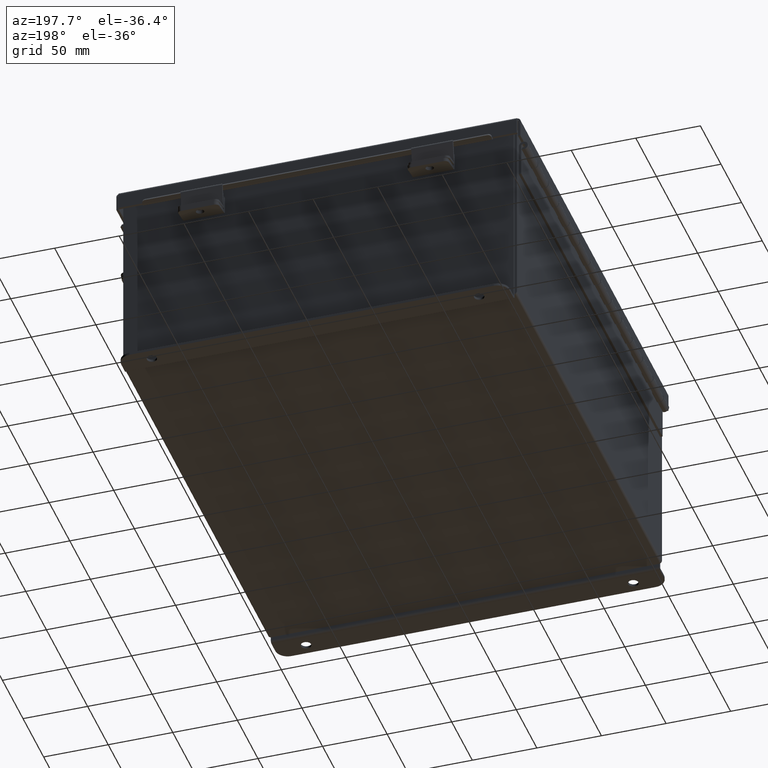
[diagram: clean part render]
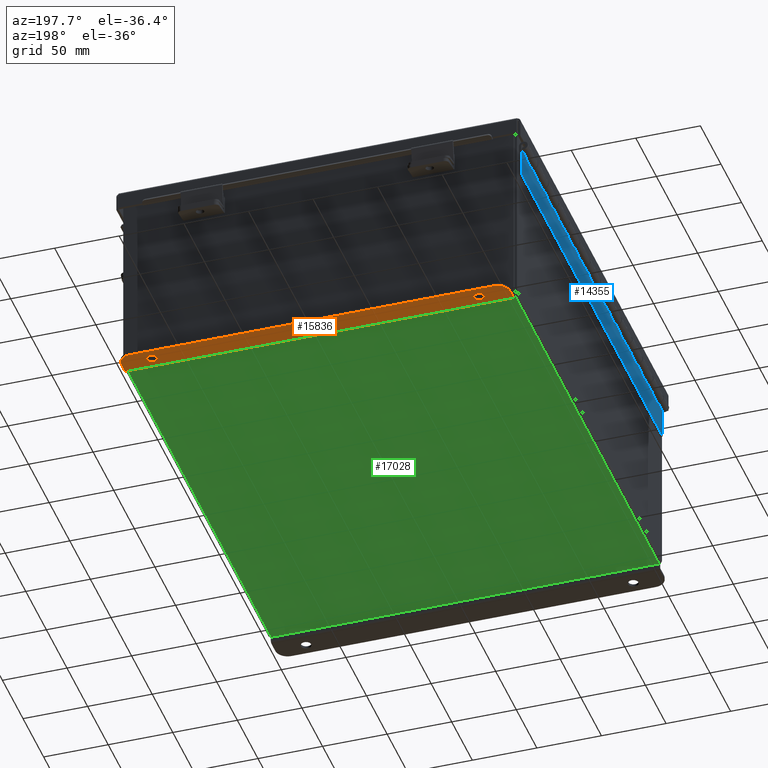
[diagram: same view with three faces highlighted in distinct colors, each labeled with its STEP entity id]
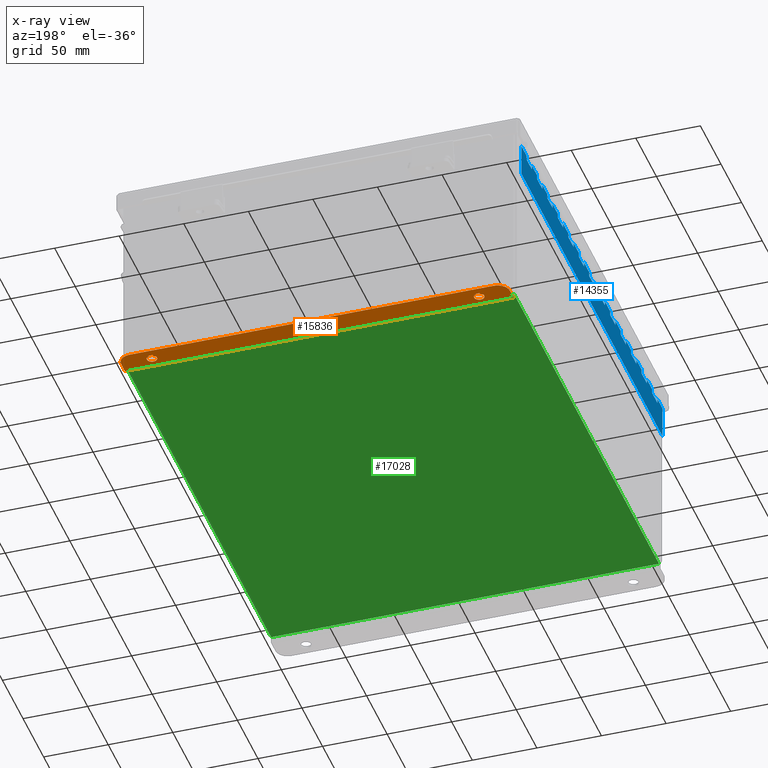
[diagram: x-ray of the same camera — body ghosted, the three highlighted faces saturated]
A machine part, auxiliary view with three faces highlighted in distinct colors.
The next image is the same camera in x-ray (body ghosted, the three faces saturated) — at least one of them is partly hidden behind the body in this view.
Their STEP definitions:

[orange] entity #15836 — the highlighted planar face has unit normal (0, 0, 1).
#337 = DIRECTION ( 'NONE',  ( 0.0000000000000000000, 1.000000000000000000, -3.502369222646487000E-015 ) ) ;
#587 = VERTEX_POINT ( 'NONE', #2865 ) ;
#720 = CARTESIAN_POINT ( 'NONE',  ( 0.0000000000000000000, -1.109230584341476100E-014, -3.187000000000000300 ) ) ;
#759 = CARTESIAN_POINT ( 'NONE',  ( -5.550299999999999100, 0.3628000000000000100, -3.187000000000001200 ) ) ;
#1600 = DIRECTION ( 'NONE',  ( 0.0000000000000000000, -3.702694488566362300E-015, -1.000000000000000000 ) ) ;
#1658 = EDGE_CURVE ( 'NONE', #587, #14502, #17418, .T. ) ;
#1887 = CARTESIAN_POINT ( 'NONE',  ( 5.925299999999999100, 0.3627999999999999600, -3.187000000000001200 ) ) ;
#2094 = VECTOR ( 'NONE', #6525, 39.37007874015748100 ) ;
#2193 = DIRECTION ( 'NONE',  ( 0.0000000000000000000, 1.000000000000000000, -3.702694488566362300E-015 ) ) ;
#2212 = DIRECTION ( 'NONE',  ( 0.0000000000000000000, -1.000000000000000000, 4.370956789862820400E-015 ) ) ;
#2614 = EDGE_CURVE ( 'NONE', #17371, #3729, #2806, .T. ) ;
#2806 = LINE ( 'NONE', #5163, #10878 ) ;
#2828 = CARTESIAN_POINT ( 'NONE',  ( -5.925300000000001800, 0.3628000000000000100, -3.187000000000001200 ) ) ;
#2838 = AXIS2_PLACEMENT_3D ( 'NONE', #16396, #7822, #17837 ) ;
#2865 = CARTESIAN_POINT ( 'NONE',  ( 4.987799999999998200, 0.2067999999999997300, -3.187000000000000700 ) ) ;
#2995 = CIRCLE ( 'NONE', #10208, 0.1560000000000001900 ) ;
#3059 = CARTESIAN_POINT ( 'NONE',  ( 5.550299999999999100, 0.7378000000000000100, -3.187000000000002900 ) ) ;
#3074 = VERTEX_POINT ( 'NONE', #8721 ) ;
#3231 = CIRCLE ( 'NONE', #13300, 0.1560000000000001900 ) ;
#3314 = ORIENTED_EDGE ( 'NONE', *, *, #16847, .F. ) ;
#3405 = EDGE_CURVE ( 'NONE', #16385, #3074, #17385, .T. ) ;
#3729 = VERTEX_POINT ( 'NONE', #3059 ) ;
#3970 = EDGE_CURVE ( 'NONE', #9628, #17371, #12644, .T. ) ;
#5010 = PLANE ( 'NONE',  #17401 ) ;
#5070 = DIRECTION ( 'NONE',  ( 0.0000000000000000000, 3.702694488566362300E-015, 1.000000000000000000 ) ) ;
#5163 = CARTESIAN_POINT ( 'NONE',  ( 0.0000000000000000000, 0.7378000000000000100, -3.187000000000002900 ) ) ;
#5236 = CIRCLE ( 'NONE', #7540, 0.1560000000000001900 ) ;
#5241 = FACE_OUTER_BOUND ( 'NONE', #15194, .T. ) ;
#5640 = VERTEX_POINT ( 'NONE', #17110 ) ;
#6077 = CARTESIAN_POINT ( 'NONE',  ( 5.925299999999999100, 0.01300000000000062700, -3.187000000000000300 ) ) ;
#6109 = AXIS2_PLACEMENT_3D ( 'NONE', #759, #10799, #2212 ) ;
#6260 = ORIENTED_EDGE ( 'NONE', *, *, #14530, .F. ) ;
#6525 = DIRECTION ( 'NONE',  ( 0.0000000000000000000, -1.000000000000000000, 3.702694488566362300E-015 ) ) ;
#6550 = EDGE_CURVE ( 'NONE', #5640, #9628, #8128, .T. ) ;
#6685 = DIRECTION ( 'NONE',  ( 0.0000000000000000000, -3.702694488566362300E-015, -1.000000000000000000 ) ) ;
#6763 = ORIENTED_EDGE ( 'NONE', *, *, #3970, .T. ) ;
#6944 = EDGE_CURVE ( 'NONE', #14502, #587, #2995, .T. ) ;
#7540 = AXIS2_PLACEMENT_3D ( 'NONE', #7865, #17899, #9284 ) ;
#7822 = DIRECTION ( 'NONE',  ( -0.0000000000000000000, -3.702694488566362300E-015, -1.000000000000000000 ) ) ;
#7865 = CARTESIAN_POINT ( 'NONE',  ( -4.987800000000000900, 0.3627999999999999000, -3.187000000000001200 ) ) ;
#8128 = LINE ( 'NONE', #9348, #15760 ) ;
#8277 = VERTEX_POINT ( 'NONE', #9502 ) ;
#8293 = EDGE_LOOP ( 'NONE', ( #17692, #9153 ) ) ;
#8721 = CARTESIAN_POINT ( 'NONE',  ( 5.925299999999999100, 0.01299999999999968500, -3.187000000000000300 ) ) ;
#8948 = DIRECTION ( 'NONE',  ( 0.0000000000000000000, -3.702694488566362300E-015, -1.000000000000000000 ) ) ;
#9006 = LINE ( 'NONE', #6077, #16196 ) ;
#9040 = FACE_BOUND ( 'NONE', #8293, .T. ) ;
#9153 = ORIENTED_EDGE ( 'NONE', *, *, #1658, .F. ) ;
#9284 = DIRECTION ( 'NONE',  ( 0.0000000000000000000, 1.000000000000000000, -3.502369222646487000E-015 ) ) ;
#9348 = CARTESIAN_POINT ( 'NONE',  ( -5.925300000000001800, -1.109230584341476100E-014, -3.187000000000000300 ) ) ;
#9502 = CARTESIAN_POINT ( 'NONE',  ( -4.987800000000000900, 0.2067999999999997300, -3.187000000000000700 ) ) ;
#9628 = VERTEX_POINT ( 'NONE', #2828 ) ;
#9725 = CIRCLE ( 'NONE', #2838, 0.3750000000000000600 ) ;
#9954 = ORIENTED_EDGE ( 'NONE', *, *, #6550, .T. ) ;
#10208 = AXIS2_PLACEMENT_3D ( 'NONE', #10216, #1600, #11659 ) ;
#10216 = CARTESIAN_POINT ( 'NONE',  ( 4.987799999999998200, 0.3627999999999999000, -3.187000000000001200 ) ) ;
#10305 = EDGE_LOOP ( 'NONE', ( #11667, #6260 ) ) ;
#10770 = CARTESIAN_POINT ( 'NONE',  ( 5.925299999999999100, -1.109230584341476100E-014, -3.187000000000000300 ) ) ;
#10787 = DIRECTION ( 'NONE',  ( 1.000000000000000000, 0.0000000000000000000, -0.0000000000000000000 ) ) ;
#10799 = DIRECTION ( 'NONE',  ( -0.0000000000000000000, -3.702694488566362300E-015, -1.000000000000000000 ) ) ;
#10878 = VECTOR ( 'NONE', #10787, 39.37007874015748100 ) ;
#11157 = EDGE_CURVE ( 'NONE', #3729, #16385, #9725, .T. ) ;
#11659 = DIRECTION ( 'NONE',  ( 0.0000000000000000000, 1.000000000000000000, -3.502369222646487000E-015 ) ) ;
#11667 = ORIENTED_EDGE ( 'NONE', *, *, #15073, .F. ) ;
#11799 = VERTEX_POINT ( 'NONE', #14571 ) ;
#11871 = ORIENTED_EDGE ( 'NONE', *, *, #3405, .T. ) ;
#12644 = CIRCLE ( 'NONE', #6109, 0.3750000000000000600 ) ;
#13300 = AXIS2_PLACEMENT_3D ( 'NONE', #15265, #6685, #16708 ) ;
#14323 = AXIS2_PLACEMENT_3D ( 'NONE', #17544, #8948, #337 ) ;
#14502 = VERTEX_POINT ( 'NONE', #15208 ) ;
#14530 = EDGE_CURVE ( 'NONE', #8277, #11799, #3231, .T. ) ;
#14571 = CARTESIAN_POINT ( 'NONE',  ( -4.987800000000000900, 0.5188000000000000400, -3.187000000000001600 ) ) ;
#14596 = ORIENTED_EDGE ( 'NONE', *, *, #11157, .T. ) ;
#14624 = DIRECTION ( 'NONE',  ( 1.000000000000000000, -0.0000000000000000000, -0.0000000000000000000 ) ) ;
#15073 = EDGE_CURVE ( 'NONE', #11799, #8277, #5236, .T. ) ;
#15085 = DIRECTION ( 'NONE',  ( 0.0000000000000000000, -1.000000000000000000, 3.702694488566362300E-015 ) ) ;
#15194 = EDGE_LOOP ( 'NONE', ( #15609, #14596, #11871, #3314, #9954, #6763 ) ) ;
#15208 = CARTESIAN_POINT ( 'NONE',  ( 4.987799999999998200, 0.5188000000000000400, -3.187000000000001600 ) ) ;
#15265 = CARTESIAN_POINT ( 'NONE',  ( -4.987800000000000900, 0.3627999999999999000, -3.187000000000001200 ) ) ;
#15609 = ORIENTED_EDGE ( 'NONE', *, *, #2614, .T. ) ;
#15760 = VECTOR ( 'NONE', #2193, 39.37007874015748100 ) ;
#15836 = ADVANCED_FACE ( 'NONE', ( #16419, #9040, #5241 ), #5010, .F. ) ;
#16196 = VECTOR ( 'NONE', #14624, 39.37007874015748100 ) ;
#16385 = VERTEX_POINT ( 'NONE', #1887 ) ;
#16396 = CARTESIAN_POINT ( 'NONE',  ( 5.550299999999999100, 0.3627999999999999600, -3.187000000000001200 ) ) ;
#16419 = FACE_BOUND ( 'NONE', #10305, .T. ) ;
#16708 = DIRECTION ( 'NONE',  ( 0.0000000000000000000, 1.000000000000000000, -3.502369222646487000E-015 ) ) ;
#16847 = EDGE_CURVE ( 'NONE', #5640, #3074, #9006, .T. ) ;
#17110 = CARTESIAN_POINT ( 'NONE',  ( -5.925300000000000000, 0.01300000000000062700, -3.187000000000000300 ) ) ;
#17128 = CARTESIAN_POINT ( 'NONE',  ( -5.550299999999999100, 0.7378000000000000100, -3.187000000000002900 ) ) ;
#17371 = VERTEX_POINT ( 'NONE', #17128 ) ;
#17385 = LINE ( 'NONE', #10770, #2094 ) ;
#17401 = AXIS2_PLACEMENT_3D ( 'NONE', #720, #5070, #15085 ) ;
#17418 = CIRCLE ( 'NONE', #14323, 0.1560000000000001900 ) ;
#17544 = CARTESIAN_POINT ( 'NONE',  ( 4.987799999999998200, 0.3627999999999999000, -3.187000000000001200 ) ) ;
#17692 = ORIENTED_EDGE ( 'NONE', *, *, #6944, .F. ) ;
#17837 = DIRECTION ( 'NONE',  ( 0.0000000000000000000, -1.000000000000000000, 4.370956789862820400E-015 ) ) ;
#17899 = DIRECTION ( 'NONE',  ( 0.0000000000000000000, -3.702694488566362300E-015, -1.000000000000000000 ) ) ;

[blue] entity #14355 — the highlighted planar face has unit normal (1, -0, 0).
#85 = VECTOR ( 'NONE', #2034, 39.37007874015748100 ) ;
#106 = LINE ( 'NONE', #14425, #11569 ) ;
#151 = VECTOR ( 'NONE', #12463, 39.37007874015748100 ) ;
#159 = DIRECTION ( 'NONE',  ( -1.000000000000000000, 8.005415366049124900E-015, 0.0000000000000000000 ) ) ;
#187 = EDGE_CURVE ( 'NONE', #11994, #7395, #11542, .T. ) ;
#191 = CARTESIAN_POINT ( 'NONE',  ( 0.0000000000000000000, 4.500000000000000900, 0.0000000000000000000 ) ) ;
#296 = CARTESIAN_POINT ( 'NONE',  ( 0.1365000000000000100, 10.50000000000000000, -1.707404996040164500E-017 ) ) ;
#312 = CARTESIAN_POINT ( 'NONE',  ( 1.136500000000000100, 0.0000000000000000000, 0.0000000000000000000 ) ) ;
#313 = VERTEX_POINT ( 'NONE', #5191 ) ;
#333 = LINE ( 'NONE', #2058, #11340 ) ;
#346 = VECTOR ( 'NONE', #1750, 39.37007874015748100 ) ;
#358 = VERTEX_POINT ( 'NONE', #5251 ) ;
#372 = CARTESIAN_POINT ( 'NONE',  ( 0.0000000000000000000, 6.500000000000000900, 0.0000000000000000000 ) ) ;
#378 = ORIENTED_EDGE ( 'NONE', *, *, #187, .F. ) ;
#426 = VERTEX_POINT ( 'NONE', #6749 ) ;
#445 = DIRECTION ( 'NONE',  ( 1.000000000000000000, 0.0000000000000000000, 0.0000000000000000000 ) ) ;
#446 = VERTEX_POINT ( 'NONE', #6887 ) ;
#574 = CARTESIAN_POINT ( 'NONE',  ( 0.2730000000000000200, -5.000000000000000000, 0.0000000000000000000 ) ) ;
#601 = VECTOR ( 'NONE', #18122, 39.37007874015748100 ) ;
#612 = CARTESIAN_POINT ( 'NONE',  ( 0.1365000000000000100, 4.500000000000000900, -1.707404996040164500E-017 ) ) ;
#637 = CARTESIAN_POINT ( 'NONE',  ( 0.2730000000000000200, 5.999999999999998200, 0.0000000000000000000 ) ) ;
#682 = ORIENTED_EDGE ( 'NONE', *, *, #1250, .F. ) ;
#713 = VECTOR ( 'NONE', #9918, 39.37007874015748100 ) ;
#715 = EDGE_CURVE ( 'NONE', #18188, #6930, #11069, .T. ) ;
#761 = LINE ( 'NONE', #14290, #4618 ) ;
#786 = VECTOR ( 'NONE', #8836, 39.37007874015748100 ) ;
#798 = LINE ( 'NONE', #9553, #11810 ) ;
#831 = VERTEX_POINT ( 'NONE', #12067 ) ;
#880 = DIRECTION ( 'NONE',  ( 0.0000000000000000000, 1.000000000000000000, 0.0000000000000000000 ) ) ;
#889 = VECTOR ( 'NONE', #11423, 39.37007874015748100 ) ;
#901 = CARTESIAN_POINT ( 'NONE',  ( 0.0000000000000000000, 0.5000000000000017800, 0.0000000000000000000 ) ) ;
#951 = CARTESIAN_POINT ( 'NONE',  ( 0.1365000000000000100, 4.999999999999999100, -1.707404996040164500E-017 ) ) ;
#979 = CARTESIAN_POINT ( 'NONE',  ( 0.2730000000000000200, 8.500000000000000000, 0.0000000000000000000 ) ) ;
#1075 = DIRECTION ( 'NONE',  ( -1.000000000000000000, 8.005415366049124900E-015, 0.0000000000000000000 ) ) ;
#1189 = CARTESIAN_POINT ( 'NONE',  ( 0.2730000000000000200, -11.99999999999999800, 0.0000000000000000000 ) ) ;
#1250 = EDGE_CURVE ( 'NONE', #3280, #358, #15168, .T. ) ;
#1276 = ORIENTED_EDGE ( 'NONE', *, *, #8896, .F. ) ;
#1328 = CARTESIAN_POINT ( 'NONE',  ( 0.1365000000000000100, 0.0000000000000000000, -1.707404996040164500E-017 ) ) ;
#1333 = ORIENTED_EDGE ( 'NONE', *, *, #9024, .F. ) ;
#1459 = EDGE_CURVE ( 'NONE', #446, #10229, #12017, .T. ) ;
#1566 = LINE ( 'NONE', #10349, #16397 ) ;
#1581 = VERTEX_POINT ( 'NONE', #1591 ) ;
#1591 = CARTESIAN_POINT ( 'NONE',  ( 0.1365000000000000100, 7.999999999999999100, -1.707404996040164500E-017 ) ) ;
#1615 = DIRECTION ( 'NONE',  ( -1.000000000000000000, 0.0000000000000000000, 0.0000000000000000000 ) ) ;
#1648 = FACE_OUTER_BOUND ( 'NONE', #3975, .T. ) ;
#1649 = CARTESIAN_POINT ( 'NONE',  ( 0.2730000000000000200, 6.500000000000000900, 0.0000000000000000000 ) ) ;
#1717 = VECTOR ( 'NONE', #9831, 39.37007874015748100 ) ;
#1720 = LINE ( 'NONE', #574, #16542 ) ;
#1750 = DIRECTION ( 'NONE',  ( -1.000000000000000000, 0.0000000000000000000, 0.0000000000000000000 ) ) ;
#1812 = CARTESIAN_POINT ( 'NONE',  ( 0.2730000000000000200, 0.9999999999999992200, 0.0000000000000000000 ) ) ;
#1854 = PLANE ( 'NONE',  #6600 ) ;
#1940 = VECTOR ( 'NONE', #16554, 39.37007874015748100 ) ;
#1993 = EDGE_CURVE ( 'NONE', #14015, #12480, #798, .T. ) ;
#2001 = VERTEX_POINT ( 'NONE', #5308 ) ;
#2034 = DIRECTION ( 'NONE',  ( -1.000000000000000000, 8.005415366049124900E-015, 0.0000000000000000000 ) ) ;
#2042 = EDGE_CURVE ( 'NONE', #2392, #8715, #18556, .T. ) ;
#2058 = CARTESIAN_POINT ( 'NONE',  ( 0.0000000000000000000, 2.500000000000000000, 0.0000000000000000000 ) ) ;
#2073 = CARTESIAN_POINT ( 'NONE',  ( 0.1365000000000000100, 3.500000000000000400, -1.707404996040164500E-017 ) ) ;
#2121 = DIRECTION ( 'NONE',  ( 0.0000000000000000000, 1.000000000000000000, 0.0000000000000000000 ) ) ;
#2155 = EDGE_CURVE ( 'NONE', #1581, #16289, #5777, .T. ) ;
#2172 = ORIENTED_EDGE ( 'NONE', *, *, #2513, .T. ) ;
#2201 = CARTESIAN_POINT ( 'NONE',  ( 0.0000000000000000000, 7.500000000000000000, 0.0000000000000000000 ) ) ;
#2287 = CARTESIAN_POINT ( 'NONE',  ( 0.2730000000000000200, -2.999999999999999600, 0.0000000000000000000 ) ) ;
#2302 = CARTESIAN_POINT ( 'NONE',  ( 0.2730000000000000200, 9.500000000000000000, 0.0000000000000000000 ) ) ;
#2306 = ORIENTED_EDGE ( 'NONE', *, *, #15187, .F. ) ;
#2340 = VERTEX_POINT ( 'NONE', #312 ) ;
#2362 = VERTEX_POINT ( 'NONE', #4682 ) ;
#2392 = VERTEX_POINT ( 'NONE', #1812 ) ;
#2408 = CARTESIAN_POINT ( 'NONE',  ( 0.2730000000000000200, -4.000000000000000000, 0.0000000000000000000 ) ) ;
#2411 = DIRECTION ( 'NONE',  ( -1.000000000000000000, 0.0000000000000000000, 0.0000000000000000000 ) ) ;
#2460 = ORIENTED_EDGE ( 'NONE', *, *, #17616, .F. ) ;
#2463 = CARTESIAN_POINT ( 'NONE',  ( 0.0000000000000000000, 3.500000000000000400, 0.0000000000000000000 ) ) ;
#2513 = EDGE_CURVE ( 'NONE', #18297, #14104, #333, .T. ) ;
#2540 = LINE ( 'NONE', #4298, #9269 ) ;
#2561 = VECTOR ( 'NONE', #1615, 39.37007874015748100 ) ;
#2610 = ORIENTED_EDGE ( 'NONE', *, *, #11279, .T. ) ;
#2742 = VERTEX_POINT ( 'NONE', #4034 ) ;
#2789 = EDGE_CURVE ( 'NONE', #7627, #15653, #11103, .T. ) ;
#2925 = CARTESIAN_POINT ( 'NONE',  ( 0.1365000000000000100, 10.00000000000000000, -1.707404996040164500E-017 ) ) ;
#2931 = VERTEX_POINT ( 'NONE', #8411 ) ;
#2955 = LINE ( 'NONE', #7737, #10569 ) ;
#2977 = VERTEX_POINT ( 'NONE', #5617 ) ;
#2978 = CARTESIAN_POINT ( 'NONE',  ( 0.2730000000000000200, -1.000000000000000000, 0.0000000000000000000 ) ) ;
#3000 = EDGE_CURVE ( 'NONE', #18343, #6173, #761, .T. ) ;
#3004 = VECTOR ( 'NONE', #13299, 39.37007874015748100 ) ;
#3009 = CARTESIAN_POINT ( 'NONE',  ( 0.1365000000000000100, 7.000000000000000000, -1.707404996040164500E-017 ) ) ;
#3226 = DIRECTION ( 'NONE',  ( -1.000000000000000000, 8.005415366049124900E-015, 0.0000000000000000000 ) ) ;
#3249 = CARTESIAN_POINT ( 'NONE',  ( 0.1365000000000000100, 11.50000000000000200, -1.707404996040164500E-017 ) ) ;
#3280 = VERTEX_POINT ( 'NONE', #13393 ) ;
#3281 = CARTESIAN_POINT ( 'NONE',  ( 0.2730000000000000200, -7.000000000000000000, 0.0000000000000000000 ) ) ;
#3303 = ORIENTED_EDGE ( 'NONE', *, *, #14612, .T. ) ;
#3321 = VERTEX_POINT ( 'NONE', #3437 ) ;
#3328 = DIRECTION ( 'NONE',  ( 0.0000000000000000000, 0.0000000000000000000, -1.000000000000000000 ) ) ;
#3329 = CARTESIAN_POINT ( 'NONE',  ( 0.0000000000000000000, 13.50000000000000000, 0.0000000000000000000 ) ) ;
#3347 = VERTEX_POINT ( 'NONE', #612 ) ;
#3354 = ORIENTED_EDGE ( 'NONE', *, *, #9719, .T. ) ;
#3357 = EDGE_CURVE ( 'NONE', #17705, #11341, #6829, .T. ) ;
#3437 = CARTESIAN_POINT ( 'NONE',  ( 0.1365000000000000100, 13.50000000000000000, -1.707404996040164500E-017 ) ) ;
#3446 = VECTOR ( 'NONE', #3226, 39.37007874015748100 ) ;
#3449 = VECTOR ( 'NONE', #4107, 39.37007874015748100 ) ;
#3485 = ORIENTED_EDGE ( 'NONE', *, *, #9775, .T. ) ;
#3659 = VERTEX_POINT ( 'NONE', #12775 ) ;
#3672 = VERTEX_POINT ( 'NONE', #4465 ) ;
#3681 = LINE ( 'NONE', #3329, #7515 ) ;
#3754 = VERTEX_POINT ( 'NONE', #1649 ) ;
#3764 = CARTESIAN_POINT ( 'NONE',  ( 0.1365000000000000100, 0.0000000000000000000, -1.707404996040164500E-017 ) ) ;
#3839 = EDGE_CURVE ( 'NONE', #426, #313, #10621, .T. ) ;
#3845 = LINE ( 'NONE', #17714, #18211 ) ;
#3975 = EDGE_LOOP ( 'NONE', ( #10413, #12664, #8888, #3354, #11065, #11081, #8969, #682, #3303, #11619, #18123, #1333, #18155, #2306, #6313, #14756, #18587, #9907, #13352, #5048, #16837, #4863, #13371, #5492, #2610, #11666, #13905, #8682, #17026, #1276, #7200, #18102, #3485, #9427, #378, #4089, #11361, #10637, #2460, #15042, #15909, #10705, #8456, #14086, #14994, #18114, #13476, #16716, #2172, #15260, #16257, #11622, #9343, #17694, #7536, #16523 ) ) ;
#3992 = DIRECTION ( 'NONE',  ( -1.000000000000000000, 0.0000000000000000000, 0.0000000000000000000 ) ) ;
#4034 = CARTESIAN_POINT ( 'NONE',  ( 0.2730000000000000200, 10.99999999999999800, 0.0000000000000000000 ) ) ;
#4089 = ORIENTED_EDGE ( 'NONE', *, *, #7485, .F. ) ;
#4107 = DIRECTION ( 'NONE',  ( -1.000000000000000000, 8.005415366049124900E-015, 0.0000000000000000000 ) ) ;
#4298 = CARTESIAN_POINT ( 'NONE',  ( 0.0000000000000000000, 1.500000000000000900, 0.0000000000000000000 ) ) ;
#4408 = LINE ( 'NONE', #3764, #11571 ) ;
#4428 = CARTESIAN_POINT ( 'NONE',  ( 1.040703997586386100E-013, 4.000000000000000000, 0.0000000000000000000 ) ) ;
#4432 = VECTOR ( 'NONE', #8360, 39.37007874015748100 ) ;
#4465 = CARTESIAN_POINT ( 'NONE',  ( 0.1365000000000000100, 13.00000000000000000, -1.707404996040164500E-017 ) ) ;
#4512 = DIRECTION ( 'NONE',  ( 0.0000000000000000000, 1.000000000000000000, 0.0000000000000000000 ) ) ;
#4528 = EDGE_CURVE ( 'NONE', #7395, #2977, #106, .T. ) ;
#4618 = VECTOR ( 'NONE', #5727, 39.37007874015748100 ) ;
#4642 = LINE ( 'NONE', #372, #346 ) ;
#4682 = CARTESIAN_POINT ( 'NONE',  ( 0.1365000000000000100, 11.00000000000000000, -1.707404996040164500E-017 ) ) ;
#4729 = DIRECTION ( 'NONE',  ( -1.000000000000000000, -0.0000000000000000000, -0.0000000000000000000 ) ) ;
#4835 = CARTESIAN_POINT ( 'NONE',  ( 0.2730000000000000200, 8.999999999999998200, 0.0000000000000000000 ) ) ;
#4842 = EDGE_CURVE ( 'NONE', #10229, #16979, #11332, .T. ) ;
#4863 = ORIENTED_EDGE ( 'NONE', *, *, #12474, .F. ) ;
#4908 = VECTOR ( 'NONE', #5549, 39.37007874015748100 ) ;
#4994 = CARTESIAN_POINT ( 'NONE',  ( 0.2730000000000000200, 3.500000000000000400, 0.0000000000000000000 ) ) ;
#5048 = ORIENTED_EDGE ( 'NONE', *, *, #8256, .F. ) ;
#5055 = VECTOR ( 'NONE', #14745, 39.37007874015748100 ) ;
#5142 = DIRECTION ( 'NONE',  ( 0.0000000000000000000, 1.000000000000000000, 0.0000000000000000000 ) ) ;
#5146 = CARTESIAN_POINT ( 'NONE',  ( 0.2730000000000000200, 9.999999999999998200, 0.0000000000000000000 ) ) ;
#5152 = EDGE_CURVE ( 'NONE', #15680, #3347, #6835, .T. ) ;
#5191 = CARTESIAN_POINT ( 'NONE',  ( 0.1365000000000000100, 12.50000000000000000, -1.707404996040164500E-017 ) ) ;
#5251 = CARTESIAN_POINT ( 'NONE',  ( 0.2730000000000000200, 12.99999999999999800, 0.0000000000000000000 ) ) ;
#5254 = VECTOR ( 'NONE', #3992, 39.37007874015748100 ) ;
#5280 = EDGE_CURVE ( 'NONE', #17966, #3321, #3681, .T. ) ;
#5288 = CARTESIAN_POINT ( 'NONE',  ( 0.1365000000000000100, 5.500000000000000900, -1.707404996040164500E-017 ) ) ;
#5308 = CARTESIAN_POINT ( 'NONE',  ( 0.2730000000000000200, 5.500000000000000900, 0.0000000000000000000 ) ) ;
#5425 = CARTESIAN_POINT ( 'NONE',  ( 0.2730000000000000200, -8.000000000000000000, 0.0000000000000000000 ) ) ;
#5428 = LINE ( 'NONE', #2201, #16409 ) ;
#5436 = CARTESIAN_POINT ( 'NONE',  ( 1.040703997586386100E-013, 1.000000000000001300, 0.0000000000000000000 ) ) ;
#5492 = ORIENTED_EDGE ( 'NONE', *, *, #18488, .F. ) ;
#5536 = LINE ( 'NONE', #9479, #16514 ) ;
#5549 = DIRECTION ( 'NONE',  ( 0.0000000000000000000, 1.000000000000000000, 0.0000000000000000000 ) ) ;
#5601 = CARTESIAN_POINT ( 'NONE',  ( 0.2730000000000000200, -11.00000000000000000, 0.0000000000000000000 ) ) ;
#5617 = CARTESIAN_POINT ( 'NONE',  ( 0.1365000000000000100, 6.500000000000000900, -1.707404996040164500E-017 ) ) ;
#5707 = CARTESIAN_POINT ( 'NONE',  ( 0.1365000000000000100, 0.5000000000000017800, -1.707404996040164500E-017 ) ) ;
#5727 = DIRECTION ( 'NONE',  ( 0.0000000000000000000, 1.000000000000000000, 0.0000000000000000000 ) ) ;
#5777 = LINE ( 'NONE', #8553, #10018 ) ;
#5788 = VERTEX_POINT ( 'NONE', #2925 ) ;
#5826 = DIRECTION ( 'NONE',  ( 0.0000000000000000000, 1.000000000000000000, 0.0000000000000000000 ) ) ;
#5911 = VECTOR ( 'NONE', #10491, 39.37007874015748100 ) ;
#6152 = VECTOR ( 'NONE', #16885, 39.37007874015748100 ) ;
#6173 = VERTEX_POINT ( 'NONE', #8053 ) ;
#6195 = CARTESIAN_POINT ( 'NONE',  ( 0.1365000000000000100, 0.0000000000000000000, -1.707404996040164500E-017 ) ) ;
#6285 = EDGE_CURVE ( 'NONE', #18366, #11187, #12176, .T. ) ;
#6313 = ORIENTED_EDGE ( 'NONE', *, *, #14709, .F. ) ;
#6354 = LINE ( 'NONE', #3281, #5911 ) ;
#6357 = EDGE_CURVE ( 'NONE', #6173, #11929, #14636, .T. ) ;
#6398 = DIRECTION ( 'NONE',  ( -1.000000000000000000, 8.005415366049124900E-015, 0.0000000000000000000 ) ) ;
#6600 = AXIS2_PLACEMENT_3D ( 'NONE', #11847, #3328, #13326 ) ;
#6678 = LINE ( 'NONE', #16486, #1940 ) ;
#6704 = CARTESIAN_POINT ( 'NONE',  ( 0.1365000000000000100, 1.500000000000000900, -1.707404996040164500E-017 ) ) ;
#6749 = CARTESIAN_POINT ( 'NONE',  ( 0.1365000000000000100, 12.00000000000000200, -1.707404996040164500E-017 ) ) ;
#6829 = LINE ( 'NONE', #16415, #18282 ) ;
#6835 = LINE ( 'NONE', #191, #2561 ) ;
#6839 = EDGE_CURVE ( 'NONE', #18297, #3659, #15069, .T. ) ;
#6887 = CARTESIAN_POINT ( 'NONE',  ( 0.2730000000000000200, 1.500000000000000900, 0.0000000000000000000 ) ) ;
#6919 = EDGE_CURVE ( 'NONE', #5788, #14334, #7463, .T. ) ;
#6930 = VERTEX_POINT ( 'NONE', #3009 ) ;
#7019 = VECTOR ( 'NONE', #14419, 39.37007874015748100 ) ;
#7085 = DIRECTION ( 'NONE',  ( 0.0000000000000000000, 1.000000000000000000, 0.0000000000000000000 ) ) ;
#7200 = ORIENTED_EDGE ( 'NONE', *, *, #715, .F. ) ;
#7258 = VECTOR ( 'NONE', #18070, 39.37007874015748100 ) ;
#7267 = LINE ( 'NONE', #1189, #18253 ) ;
#7317 = VECTOR ( 'NONE', #10977, 39.37007874015748100 ) ;
#7367 = LINE ( 'NONE', #2287, #14516 ) ;
#7395 = VERTEX_POINT ( 'NONE', #11682 ) ;
#7431 = CARTESIAN_POINT ( 'NONE',  ( 1.136500000000000100, 0.0000000000000000000, 0.0000000000000000000 ) ) ;
#7463 = LINE ( 'NONE', #15875, #10611 ) ;
#7485 = EDGE_CURVE ( 'NONE', #2001, #11994, #6354, .T. ) ;
#7498 = VECTOR ( 'NONE', #12368, 39.37007874015748100 ) ;
#7515 = VECTOR ( 'NONE', #4729, 39.37007874015748100 ) ;
#7536 = ORIENTED_EDGE ( 'NONE', *, *, #2042, .F. ) ;
#7627 = VERTEX_POINT ( 'NONE', #13598 ) ;
#7737 = CARTESIAN_POINT ( 'NONE',  ( 0.0000000000000000000, 5.500000000000000900, 0.0000000000000000000 ) ) ;
#7800 = LINE ( 'NONE', #11016, #151 ) ;
#7970 = LINE ( 'NONE', #14997, #15136 ) ;
#8008 = VECTOR ( 'NONE', #18053, 39.37007874015748100 ) ;
#8033 = VECTOR ( 'NONE', #14600, 39.37007874015748100 ) ;
#8046 = CARTESIAN_POINT ( 'NONE',  ( 0.1365000000000000100, 0.0000000000000000000, -1.707404996040164500E-017 ) ) ;
#8053 = CARTESIAN_POINT ( 'NONE',  ( 0.2730000000000000200, 3.999999999999997800, 0.0000000000000000000 ) ) ;
#8209 = VECTOR ( 'NONE', #9892, 39.37007874015748100 ) ;
#8256 = EDGE_CURVE ( 'NONE', #14015, #17820, #7367, .T. ) ;
#8352 = CARTESIAN_POINT ( 'NONE',  ( 0.2730000000000000200, -5.999999999999999100, 0.0000000000000000000 ) ) ;
#8360 = DIRECTION ( 'NONE',  ( -1.000000000000000000, 8.005415366049124900E-015, 0.0000000000000000000 ) ) ;
#8386 = EDGE_CURVE ( 'NONE', #14508, #12940, #12723, .T. ) ;
#8391 = CARTESIAN_POINT ( 'NONE',  ( 0.1365000000000000100, 0.0000000000000000000, -1.707404996040164500E-017 ) ) ;
#8411 = CARTESIAN_POINT ( 'NONE',  ( 0.2730000000000000200, 10.50000000000000000, 0.0000000000000000000 ) ) ;
#8414 = CARTESIAN_POINT ( 'NONE',  ( 0.2730000000000000200, 7.999999999999997300, 0.0000000000000000000 ) ) ;
#8442 = VECTOR ( 'NONE', #12518, 39.37007874015748100 ) ;
#8445 = LINE ( 'NONE', #7431, #786 ) ;
#8456 = ORIENTED_EDGE ( 'NONE', *, *, #6357, .F. ) ;
#8553 = CARTESIAN_POINT ( 'NONE',  ( 0.1365000000000000100, 0.0000000000000000000, -1.707404996040164500E-017 ) ) ;
#8555 = CARTESIAN_POINT ( 'NONE',  ( 0.1365000000000000100, 7.500000000000000000, -1.707404996040164500E-017 ) ) ;
#8682 = ORIENTED_EDGE ( 'NONE', *, *, #9210, .F. ) ;
#8712 = LINE ( 'NONE', #8352, #4908 ) ;
#8715 = VERTEX_POINT ( 'NONE', #12329 ) ;
#8751 = VERTEX_POINT ( 'NONE', #951 ) ;
#8761 = VECTOR ( 'NONE', #16181, 39.37007874015748100 ) ;
#8836 = DIRECTION ( 'NONE',  ( -1.011795553208986400E-017, 1.000000000000000000, 0.0000000000000000000 ) ) ;
#8859 = LINE ( 'NONE', #10421, #5055 ) ;
#8879 = VECTOR ( 'NONE', #15659, 39.37007874015748100 ) ;
#8888 = ORIENTED_EDGE ( 'NONE', *, *, #16932, .T. ) ;
#8896 = EDGE_CURVE ( 'NONE', #6930, #16699, #16516, .T. ) ;
#8966 = CARTESIAN_POINT ( 'NONE',  ( 0.1365000000000000100, 0.0000000000000000000, -1.707404996040164500E-017 ) ) ;
#8969 = ORIENTED_EDGE ( 'NONE', *, *, #9486, .F. ) ;
#9024 = EDGE_CURVE ( 'NONE', #7627, #13235, #18537, .T. ) ;
#9173 = CARTESIAN_POINT ( 'NONE',  ( 0.1365000000000000100, 2.000000000000000000, -1.707404996040164500E-017 ) ) ;
#9210 = EDGE_CURVE ( 'NONE', #17864, #17308, #1720, .T. ) ;
#9223 = DIRECTION ( 'NONE',  ( -1.000000000000000000, 0.0000000000000000000, 0.0000000000000000000 ) ) ;
#9269 = VECTOR ( 'NONE', #12932, 39.37007874015748100 ) ;
#9312 = CARTESIAN_POINT ( 'NONE',  ( 0.2730000000000000200, -2.000000000000000000, 0.0000000000000000000 ) ) ;
#9343 = ORIENTED_EDGE ( 'NONE', *, *, #14817, .T. ) ;
#9358 = DIRECTION ( 'NONE',  ( -1.000000000000000000, 0.0000000000000000000, 0.0000000000000000000 ) ) ;
#9427 = ORIENTED_EDGE ( 'NONE', *, *, #4528, .F. ) ;
#9479 = CARTESIAN_POINT ( 'NONE',  ( 0.1365000000000000100, 0.0000000000000000000, -1.707404996040164500E-017 ) ) ;
#9486 = EDGE_CURVE ( 'NONE', #358, #3672, #15407, .T. ) ;
#9553 = CARTESIAN_POINT ( 'NONE',  ( 0.0000000000000000000, 9.500000000000000000, 0.0000000000000000000 ) ) ;
#9696 = CARTESIAN_POINT ( 'NONE',  ( 1.136500000000000100, 13.50000000000000000, 0.0000000000000000000 ) ) ;
#9719 = EDGE_CURVE ( 'NONE', #2340, #17966, #8445, .T. ) ;
#9771 = CARTESIAN_POINT ( 'NONE',  ( 0.2730000000000000200, 1.999999999999998400, 0.0000000000000000000 ) ) ;
#9775 = EDGE_CURVE ( 'NONE', #3754, #2977, #4642, .T. ) ;
#9809 = CARTESIAN_POINT ( 'NONE',  ( 1.040703997586386100E-013, 2.999999999999999600, 0.0000000000000000000 ) ) ;
#9831 = DIRECTION ( 'NONE',  ( 0.0000000000000000000, 1.000000000000000000, 0.0000000000000000000 ) ) ;
#9892 = DIRECTION ( 'NONE',  ( 0.0000000000000000000, 1.000000000000000000, 0.0000000000000000000 ) ) ;
#9907 = ORIENTED_EDGE ( 'NONE', *, *, #6919, .F. ) ;
#9918 = DIRECTION ( 'NONE',  ( 0.0000000000000000000, 1.000000000000000000, 0.0000000000000000000 ) ) ;
#10018 = VECTOR ( 'NONE', #14236, 39.37007874015748100 ) ;
#10039 = EDGE_CURVE ( 'NONE', #8751, #12061, #4408, .T. ) ;
#10085 = LINE ( 'NONE', #9809, #12552 ) ;
#10152 = DIRECTION ( 'NONE',  ( 0.0000000000000000000, 1.000000000000000000, 0.0000000000000000000 ) ) ;
#10229 = VERTEX_POINT ( 'NONE', #9771 ) ;
#10349 = CARTESIAN_POINT ( 'NONE',  ( 1.040703997586386100E-013, 5.000000000000000000, 0.0000000000000000000 ) ) ;
#10406 = DIRECTION ( 'NONE',  ( -1.000000000000000000, 8.005415366049124900E-015, 0.0000000000000000000 ) ) ;
#10413 = ORIENTED_EDGE ( 'NONE', *, *, #12697, .T. ) ;
#10421 = CARTESIAN_POINT ( 'NONE',  ( 0.0000000000000000000, 10.50000000000000000, 0.0000000000000000000 ) ) ;
#10475 = CARTESIAN_POINT ( 'NONE',  ( 0.1365000000000000100, 0.0000000000000000000, -1.707404996040164500E-017 ) ) ;
#10491 = DIRECTION ( 'NONE',  ( 0.0000000000000000000, 1.000000000000000000, 0.0000000000000000000 ) ) ;
#10569 = VECTOR ( 'NONE', #12059, 39.37007874015748100 ) ;
#10611 = VECTOR ( 'NONE', #10152, 39.37007874015748100 ) ;
#10612 = DIRECTION ( 'NONE',  ( 0.0000000000000000000, 1.000000000000000000, 0.0000000000000000000 ) ) ;
#10621 = LINE ( 'NONE', #6195, #3004 ) ;
#10628 = CARTESIAN_POINT ( 'NONE',  ( 0.2730000000000000200, 2.500000000000000000, 0.0000000000000000000 ) ) ;
#10637 = ORIENTED_EDGE ( 'NONE', *, *, #10039, .F. ) ;
#10656 = EDGE_CURVE ( 'NONE', #2931, #2742, #18293, .T. ) ;
#10705 = ORIENTED_EDGE ( 'NONE', *, *, #12728, .F. ) ;
#10815 = LINE ( 'NONE', #17358, #14172 ) ;
#10906 = VECTOR ( 'NONE', #1075, 39.37007874015748100 ) ;
#10916 = CARTESIAN_POINT ( 'NONE',  ( 0.0000000000000000000, 11.50000000000000200, 0.0000000000000000000 ) ) ;
#10977 = DIRECTION ( 'NONE',  ( -1.000000000000000000, 0.0000000000000000000, 0.0000000000000000000 ) ) ;
#11016 = CARTESIAN_POINT ( 'NONE',  ( 0.1365000000000000100, 0.0000000000000000000, -1.707404996040164500E-017 ) ) ;
#11045 = CARTESIAN_POINT ( 'NONE',  ( 0.1365000000000000100, 8.999999999999998200, -1.707404996040164500E-017 ) ) ;
#11065 = ORIENTED_EDGE ( 'NONE', *, *, #5280, .T. ) ;
#11069 = LINE ( 'NONE', #13189, #3446 ) ;
#11081 = ORIENTED_EDGE ( 'NONE', *, *, #17677, .F. ) ;
#11103 = LINE ( 'NONE', #10916, #7317 ) ;
#11187 = VERTEX_POINT ( 'NONE', #2073 ) ;
#11254 = VECTOR ( 'NONE', #7085, 39.37007874015748100 ) ;
#11279 = EDGE_CURVE ( 'NONE', #14067, #16289, #15099, .T. ) ;
#11305 = CARTESIAN_POINT ( 'NONE',  ( 1.040703997586386100E-013, 11.00000000000000000, 0.0000000000000000000 ) ) ;
#11332 = LINE ( 'NONE', #12118, #18065 ) ;
#11340 = VECTOR ( 'NONE', #9223, 39.37007874015748100 ) ;
#11341 = VERTEX_POINT ( 'NONE', #11045 ) ;
#11342 = CARTESIAN_POINT ( 'NONE',  ( 0.2730000000000000200, -10.00000000000000000, 0.0000000000000000000 ) ) ;
#11361 = ORIENTED_EDGE ( 'NONE', *, *, #16987, .T. ) ;
#11384 = EDGE_CURVE ( 'NONE', #15680, #18054, #13728, .T. ) ;
#11401 = CARTESIAN_POINT ( 'NONE',  ( 0.2730000000000000200, 4.999999999999998200, 0.0000000000000000000 ) ) ;
#11423 = DIRECTION ( 'NONE',  ( -1.000000000000000000, 8.005415366049124900E-015, 0.0000000000000000000 ) ) ;
#11542 = LINE ( 'NONE', #13490, #85 ) ;
#11567 = EDGE_CURVE ( 'NONE', #831, #2392, #7267, .T. ) ;
#11569 = VECTOR ( 'NONE', #5826, 39.37007874015748100 ) ;
#11571 = VECTOR ( 'NONE', #18128, 39.37007874015748100 ) ;
#11619 = ORIENTED_EDGE ( 'NONE', *, *, #3839, .F. ) ;
#11622 = ORIENTED_EDGE ( 'NONE', *, *, #1459, .F. ) ;
#11666 = ORIENTED_EDGE ( 'NONE', *, *, #2155, .F. ) ;
#11682 = CARTESIAN_POINT ( 'NONE',  ( 0.1365000000000000100, 5.999999999999999100, -1.707404996040164500E-017 ) ) ;
#11787 = LINE ( 'NONE', #2463, #8442 ) ;
#11810 = VECTOR ( 'NONE', #2411, 39.37007874015748100 ) ;
#11833 = LINE ( 'NONE', #8966, #8033 ) ;
#11847 = CARTESIAN_POINT ( 'NONE',  ( 1.136499999999999800, 13.50000000000000000, 0.0000000000000000000 ) ) ;
#11929 = VERTEX_POINT ( 'NONE', #17765 ) ;
#11994 = VERTEX_POINT ( 'NONE', #637 ) ;
#12017 = LINE ( 'NONE', #5601, #8209 ) ;
#12059 = DIRECTION ( 'NONE',  ( -1.000000000000000000, 0.0000000000000000000, 0.0000000000000000000 ) ) ;
#12061 = VERTEX_POINT ( 'NONE', #5288 ) ;
#12067 = CARTESIAN_POINT ( 'NONE',  ( 0.2730000000000000200, 0.5000000000000017800, 0.0000000000000000000 ) ) ;
#12118 = CARTESIAN_POINT ( 'NONE',  ( 1.040703997586386100E-013, 2.000000000000000400, 0.0000000000000000000 ) ) ;
#12160 = EDGE_CURVE ( 'NONE', #3754, #18188, #8712, .T. ) ;
#12176 = LINE ( 'NONE', #18525, #713 ) ;
#12190 = CARTESIAN_POINT ( 'NONE',  ( 0.1365000000000000100, 2.999999999999999100, -1.707404996040164500E-017 ) ) ;
#12329 = CARTESIAN_POINT ( 'NONE',  ( 0.1365000000000000100, 1.000000000000000900, -1.707404996040164500E-017 ) ) ;
#12368 = DIRECTION ( 'NONE',  ( -1.000000000000000000, 0.0000000000000000000, 0.0000000000000000000 ) ) ;
#12463 = DIRECTION ( 'NONE',  ( 0.0000000000000000000, 1.000000000000000000, 0.0000000000000000000 ) ) ;
#12474 = EDGE_CURVE ( 'NONE', #11341, #12480, #11833, .T. ) ;
#12480 = VERTEX_POINT ( 'NONE', #17622 ) ;
#12518 = DIRECTION ( 'NONE',  ( -1.000000000000000000, 0.0000000000000000000, 0.0000000000000000000 ) ) ;
#12552 = VECTOR ( 'NONE', #14121, 39.37007874015748100 ) ;
#12584 = LINE ( 'NONE', #10475, #8761 ) ;
#12634 = EDGE_CURVE ( 'NONE', #17308, #1581, #6678, .T. ) ;
#12664 = ORIENTED_EDGE ( 'NONE', *, *, #8386, .F. ) ;
#12694 = DIRECTION ( 'NONE',  ( 0.0000000000000000000, 1.000000000000000000, 0.0000000000000000000 ) ) ;
#12697 = EDGE_CURVE ( 'NONE', #831, #12940, #15883, .T. ) ;
#12709 = VERTEX_POINT ( 'NONE', #6704 ) ;
#12723 = LINE ( 'NONE', #8391, #1717 ) ;
#12728 = EDGE_CURVE ( 'NONE', #11929, #3347, #7800, .T. ) ;
#12775 = CARTESIAN_POINT ( 'NONE',  ( 0.2730000000000000200, 2.999999999999997300, 0.0000000000000000000 ) ) ;
#12932 = DIRECTION ( 'NONE',  ( -1.000000000000000000, 0.0000000000000000000, 0.0000000000000000000 ) ) ;
#12940 = VERTEX_POINT ( 'NONE', #5707 ) ;
#13189 = CARTESIAN_POINT ( 'NONE',  ( 1.040703997586386100E-013, 7.000000000000000900, 0.0000000000000000000 ) ) ;
#13235 = VERTEX_POINT ( 'NONE', #15018 ) ;
#13299 = DIRECTION ( 'NONE',  ( 0.0000000000000000000, 1.000000000000000000, 0.0000000000000000000 ) ) ;
#13326 = DIRECTION ( 'NONE',  ( -1.000000000000000000, 0.0000000000000000000, -0.0000000000000000000 ) ) ;
#13352 = ORIENTED_EDGE ( 'NONE', *, *, #17375, .F. ) ;
#13371 = ORIENTED_EDGE ( 'NONE', *, *, #3357, .F. ) ;
#13381 = EDGE_CURVE ( 'NONE', #8715, #12709, #5536, .T. ) ;
#13393 = CARTESIAN_POINT ( 'NONE',  ( 0.2730000000000000200, 12.50000000000000000, 0.0000000000000000000 ) ) ;
#13431 = EDGE_CURVE ( 'NONE', #18343, #11187, #11787, .T. ) ;
#13476 = ORIENTED_EDGE ( 'NONE', *, *, #18600, .F. ) ;
#13490 = CARTESIAN_POINT ( 'NONE',  ( 1.040703997586386100E-013, 6.000000000000000900, 0.0000000000000000000 ) ) ;
#13524 = DIRECTION ( 'NONE',  ( -1.000000000000000000, 8.005415366049124900E-015, 0.0000000000000000000 ) ) ;
#13598 = CARTESIAN_POINT ( 'NONE',  ( 0.2730000000000000200, 11.50000000000000200, 0.0000000000000000000 ) ) ;
#13623 = DIRECTION ( 'NONE',  ( 0.0000000000000000000, 1.000000000000000000, 0.0000000000000000000 ) ) ;
#13689 = CARTESIAN_POINT ( 'NONE',  ( 0.2730000000000000200, 0.0000000000000000000, 0.0000000000000000000 ) ) ;
#13725 = CARTESIAN_POINT ( 'NONE',  ( 0.1364999999999999000, 0.0000000000000000000, 0.0000000000000000000 ) ) ;
#13728 = LINE ( 'NONE', #5425, #6152 ) ;
#13776 = CARTESIAN_POINT ( 'NONE',  ( 0.0000000000000000000, 8.500000000000000000, 0.0000000000000000000 ) ) ;
#13817 = EDGE_CURVE ( 'NONE', #2931, #14334, #8859, .T. ) ;
#13860 = DIRECTION ( 'NONE',  ( 0.0000000000000000000, 1.000000000000000000, 0.0000000000000000000 ) ) ;
#13866 = VECTOR ( 'NONE', #13860, 39.37007874015748100 ) ;
#13905 = ORIENTED_EDGE ( 'NONE', *, *, #12634, .F. ) ;
#13920 = EDGE_CURVE ( 'NONE', #16979, #14104, #7970, .T. ) ;
#13992 = VECTOR ( 'NONE', #13623, 39.37007874015748100 ) ;
#14015 = VERTEX_POINT ( 'NONE', #2302 ) ;
#14067 = VERTEX_POINT ( 'NONE', #979 ) ;
#14086 = ORIENTED_EDGE ( 'NONE', *, *, #3000, .F. ) ;
#14104 = VERTEX_POINT ( 'NONE', #16870 ) ;
#14121 = DIRECTION ( 'NONE',  ( -1.000000000000000000, 8.005415366049124900E-015, 0.0000000000000000000 ) ) ;
#14172 = VECTOR ( 'NONE', #159, 39.37007874015748100 ) ;
#14236 = DIRECTION ( 'NONE',  ( 0.0000000000000000000, 1.000000000000000000, 0.0000000000000000000 ) ) ;
#14290 = CARTESIAN_POINT ( 'NONE',  ( 0.2730000000000000200, -9.000000000000000000, 0.0000000000000000000 ) ) ;
#14334 = VERTEX_POINT ( 'NONE', #296 ) ;
#14355 = ADVANCED_FACE ( 'NONE', ( #1648 ), #1854, .F. ) ;
#14419 = DIRECTION ( 'NONE',  ( -1.000000000000000000, 8.005415366049124900E-015, 0.0000000000000000000 ) ) ;
#14425 = CARTESIAN_POINT ( 'NONE',  ( 0.1365000000000000100, 0.0000000000000000000, -1.707404996040164500E-017 ) ) ;
#14508 = VERTEX_POINT ( 'NONE', #13725 ) ;
#14516 = VECTOR ( 'NONE', #5142, 39.37007874015748100 ) ;
#14600 = DIRECTION ( 'NONE',  ( 0.0000000000000000000, 1.000000000000000000, 0.0000000000000000000 ) ) ;
#14612 = EDGE_CURVE ( 'NONE', #3280, #313, #16245, .T. ) ;
#14636 = LINE ( 'NONE', #4428, #7019 ) ;
#14701 = CARTESIAN_POINT ( 'NONE',  ( 0.2730000000000000200, 6.999999999999998200, 0.0000000000000000000 ) ) ;
#14706 = VECTOR ( 'NONE', #4512, 39.37007874015748100 ) ;
#14709 = EDGE_CURVE ( 'NONE', #2742, #2362, #14880, .T. ) ;
#14724 = CARTESIAN_POINT ( 'NONE',  ( 0.2730000000000000200, 4.500000000000000900, 0.0000000000000000000 ) ) ;
#14745 = DIRECTION ( 'NONE',  ( -1.000000000000000000, 0.0000000000000000000, 0.0000000000000000000 ) ) ;
#14756 = ORIENTED_EDGE ( 'NONE', *, *, #10656, .F. ) ;
#14817 = EDGE_CURVE ( 'NONE', #446, #12709, #2540, .T. ) ;
#14880 = LINE ( 'NONE', #11305, #3449 ) ;
#14994 = ORIENTED_EDGE ( 'NONE', *, *, #13431, .T. ) ;
#14997 = CARTESIAN_POINT ( 'NONE',  ( 0.1365000000000000100, 0.0000000000000000000, -1.707404996040164500E-017 ) ) ;
#15018 = CARTESIAN_POINT ( 'NONE',  ( 0.2730000000000000200, 11.99999999999999800, 0.0000000000000000000 ) ) ;
#15042 = ORIENTED_EDGE ( 'NONE', *, *, #11384, .F. ) ;
#15069 = LINE ( 'NONE', #11342, #11254 ) ;
#15099 = LINE ( 'NONE', #13776, #7498 ) ;
#15136 = VECTOR ( 'NONE', #2121, 39.37007874015748100 ) ;
#15168 = LINE ( 'NONE', #13689, #8008 ) ;
#15187 = EDGE_CURVE ( 'NONE', #2362, #15653, #15316, .T. ) ;
#15260 = ORIENTED_EDGE ( 'NONE', *, *, #13920, .F. ) ;
#15316 = LINE ( 'NONE', #8046, #7258 ) ;
#15407 = LINE ( 'NONE', #18401, #4432 ) ;
#15653 = VERTEX_POINT ( 'NONE', #3249 ) ;
#15659 = DIRECTION ( 'NONE',  ( 0.0000000000000000000, 1.000000000000000000, 0.0000000000000000000 ) ) ;
#15680 = VERTEX_POINT ( 'NONE', #14724 ) ;
#15875 = CARTESIAN_POINT ( 'NONE',  ( 0.1365000000000000100, 0.0000000000000000000, -1.707404996040164500E-017 ) ) ;
#15883 = LINE ( 'NONE', #901, #601 ) ;
#15909 = ORIENTED_EDGE ( 'NONE', *, *, #5152, .T. ) ;
#16030 = CARTESIAN_POINT ( 'NONE',  ( 0.1365000000000000100, 8.500000000000000000, -1.707404996040164500E-017 ) ) ;
#16181 = DIRECTION ( 'NONE',  ( 0.0000000000000000000, 1.000000000000000000, 0.0000000000000000000 ) ) ;
#16230 = EDGE_CURVE ( 'NONE', #13235, #426, #10815, .T. ) ;
#16245 = LINE ( 'NONE', #16894, #5254 ) ;
#16257 = ORIENTED_EDGE ( 'NONE', *, *, #4842, .F. ) ;
#16289 = VERTEX_POINT ( 'NONE', #16030 ) ;
#16397 = VECTOR ( 'NONE', #10406, 39.37007874015748100 ) ;
#16409 = VECTOR ( 'NONE', #9358, 39.37007874015748100 ) ;
#16415 = CARTESIAN_POINT ( 'NONE',  ( 1.040703997586386100E-013, 9.000000000000000000, 0.0000000000000000000 ) ) ;
#16486 = CARTESIAN_POINT ( 'NONE',  ( 1.040703997586386100E-013, 8.000000000000000000, 0.0000000000000000000 ) ) ;
#16514 = VECTOR ( 'NONE', #880, 39.37007874015748100 ) ;
#16516 = LINE ( 'NONE', #1328, #8879 ) ;
#16523 = ORIENTED_EDGE ( 'NONE', *, *, #11567, .F. ) ;
#16542 = VECTOR ( 'NONE', #10612, 39.37007874015748100 ) ;
#16554 = DIRECTION ( 'NONE',  ( -1.000000000000000000, 8.005415366049124900E-015, 0.0000000000000000000 ) ) ;
#16618 = LINE ( 'NONE', #18582, #889 ) ;
#16660 = CARTESIAN_POINT ( 'NONE',  ( 0.2730000000000000200, 7.500000000000000000, 0.0000000000000000000 ) ) ;
#16699 = VERTEX_POINT ( 'NONE', #8555 ) ;
#16716 = ORIENTED_EDGE ( 'NONE', *, *, #6839, .F. ) ;
#16837 = ORIENTED_EDGE ( 'NONE', *, *, #1993, .T. ) ;
#16870 = CARTESIAN_POINT ( 'NONE',  ( 0.1365000000000000100, 2.500000000000000000, -1.707404996040164500E-017 ) ) ;
#16885 = DIRECTION ( 'NONE',  ( 0.0000000000000000000, 1.000000000000000000, 0.0000000000000000000 ) ) ;
#16894 = CARTESIAN_POINT ( 'NONE',  ( 0.0000000000000000000, 12.50000000000000000, 0.0000000000000000000 ) ) ;
#16932 = EDGE_CURVE ( 'NONE', #14508, #2340, #3845, .T. ) ;
#16979 = VERTEX_POINT ( 'NONE', #9173 ) ;
#16987 = EDGE_CURVE ( 'NONE', #2001, #12061, #2955, .T. ) ;
#17026 = ORIENTED_EDGE ( 'NONE', *, *, #17065, .T. ) ;
#17065 = EDGE_CURVE ( 'NONE', #17864, #16699, #5428, .T. ) ;
#17308 = VERTEX_POINT ( 'NONE', #8414 ) ;
#17358 = CARTESIAN_POINT ( 'NONE',  ( 1.040703997586386100E-013, 12.00000000000000200, 0.0000000000000000000 ) ) ;
#17375 = EDGE_CURVE ( 'NONE', #17820, #5788, #16618, .T. ) ;
#17616 = EDGE_CURVE ( 'NONE', #18054, #8751, #1566, .T. ) ;
#17622 = CARTESIAN_POINT ( 'NONE',  ( 0.1365000000000000100, 9.500000000000000000, -1.707404996040164500E-017 ) ) ;
#17677 = EDGE_CURVE ( 'NONE', #3672, #3321, #12584, .T. ) ;
#17694 = ORIENTED_EDGE ( 'NONE', *, *, #13381, .F. ) ;
#17705 = VERTEX_POINT ( 'NONE', #4835 ) ;
#17714 = CARTESIAN_POINT ( 'NONE',  ( 0.0000000000000000000, 0.0000000000000000000, 0.0000000000000000000 ) ) ;
#17715 = LINE ( 'NONE', #2408, #13866 ) ;
#17765 = CARTESIAN_POINT ( 'NONE',  ( 0.1365000000000000100, 3.999999999999999600, -1.707404996040164500E-017 ) ) ;
#17820 = VERTEX_POINT ( 'NONE', #5146 ) ;
#17864 = VERTEX_POINT ( 'NONE', #16660 ) ;
#17966 = VERTEX_POINT ( 'NONE', #9696 ) ;
#18053 = DIRECTION ( 'NONE',  ( 0.0000000000000000000, 1.000000000000000000, 0.0000000000000000000 ) ) ;
#18054 = VERTEX_POINT ( 'NONE', #11401 ) ;
#18065 = VECTOR ( 'NONE', #13524, 39.37007874015748100 ) ;
#18070 = DIRECTION ( 'NONE',  ( 0.0000000000000000000, 1.000000000000000000, 0.0000000000000000000 ) ) ;
#18102 = ORIENTED_EDGE ( 'NONE', *, *, #12160, .F. ) ;
#18114 = ORIENTED_EDGE ( 'NONE', *, *, #6285, .F. ) ;
#18122 = DIRECTION ( 'NONE',  ( -1.000000000000000000, 0.0000000000000000000, 0.0000000000000000000 ) ) ;
#18123 = ORIENTED_EDGE ( 'NONE', *, *, #16230, .F. ) ;
#18128 = DIRECTION ( 'NONE',  ( 0.0000000000000000000, 1.000000000000000000, 0.0000000000000000000 ) ) ;
#18155 = ORIENTED_EDGE ( 'NONE', *, *, #2789, .T. ) ;
#18188 = VERTEX_POINT ( 'NONE', #14701 ) ;
#18211 = VECTOR ( 'NONE', #445, 39.37007874015748100 ) ;
#18253 = VECTOR ( 'NONE', #12694, 39.37007874015748100 ) ;
#18282 = VECTOR ( 'NONE', #6398, 39.37007874015748100 ) ;
#18293 = LINE ( 'NONE', #9312, #13992 ) ;
#18297 = VERTEX_POINT ( 'NONE', #10628 ) ;
#18343 = VERTEX_POINT ( 'NONE', #4994 ) ;
#18366 = VERTEX_POINT ( 'NONE', #12190 ) ;
#18401 = CARTESIAN_POINT ( 'NONE',  ( 1.040703997586386100E-013, 13.00000000000000000, 0.0000000000000000000 ) ) ;
#18488 = EDGE_CURVE ( 'NONE', #14067, #17705, #17715, .T. ) ;
#18525 = CARTESIAN_POINT ( 'NONE',  ( 0.1365000000000000100, 0.0000000000000000000, -1.707404996040164500E-017 ) ) ;
#18537 = LINE ( 'NONE', #2978, #14706 ) ;
#18556 = LINE ( 'NONE', #5436, #10906 ) ;
#18582 = CARTESIAN_POINT ( 'NONE',  ( 1.040703997586386100E-013, 10.00000000000000000, 0.0000000000000000000 ) ) ;
#18587 = ORIENTED_EDGE ( 'NONE', *, *, #13817, .T. ) ;
#18600 = EDGE_CURVE ( 'NONE', #3659, #18366, #10085, .T. ) ;

[green] entity #17028 — the highlighted planar face has unit normal (0, 0, -1).
#556 = CARTESIAN_POINT ( 'NONE',  ( 5.912300000000000100, 6.925299999999996500, -0.07469999999999994700 ) ) ;
#700 = LINE ( 'NONE', #7022, #15533 ) ;
#1165 = VECTOR ( 'NONE', #10178, 39.37007874015748100 ) ;
#1855 = EDGE_CURVE ( 'NONE', #13892, #16020, #6453, .T. ) ;
#2129 = DIRECTION ( 'NONE',  ( -1.000000000000000000, 0.0000000000000000000, -0.0000000000000000000 ) ) ;
#3561 = CARTESIAN_POINT ( 'NONE',  ( -6.000000000000000900, 6.925299999999998200, -0.07470000000000000300 ) ) ;
#3599 = CARTESIAN_POINT ( 'NONE',  ( 5.912300000000000100, 6.925299999999998200, -0.07469999999999994700 ) ) ;
#4612 = ORIENTED_EDGE ( 'NONE', *, *, #1855, .F. ) ;
#5893 = FACE_OUTER_BOUND ( 'NONE', #15257, .T. ) ;
#6110 = EDGE_CURVE ( 'NONE', #13892, #17224, #11511, .T. ) ;
#6425 = CARTESIAN_POINT ( 'NONE',  ( 0.0000000000000000000, 0.0000000000000000000, -0.07470000000000000300 ) ) ;
#6453 = LINE ( 'NONE', #3561, #17442 ) ;
#6779 = CARTESIAN_POINT ( 'NONE',  ( 5.912300000000000100, -6.925300000000000900, -0.07470000000000000300 ) ) ;
#6815 = EDGE_CURVE ( 'NONE', #10014, #16020, #700, .T. ) ;
#6969 = AXIS2_PLACEMENT_3D ( 'NONE', #6425, #10748, #2129 ) ;
#7016 = ORIENTED_EDGE ( 'NONE', *, *, #14850, .F. ) ;
#7022 = CARTESIAN_POINT ( 'NONE',  ( -5.912300000000000100, -6.925300000000000900, -0.07469999999999994700 ) ) ;
#8475 = DIRECTION ( 'NONE',  ( -0.0000000000000000000, 1.000000000000000000, -0.0000000000000000000 ) ) ;
#9289 = PLANE ( 'NONE',  #6969 ) ;
#10014 = VERTEX_POINT ( 'NONE', #18057 ) ;
#10178 = DIRECTION ( 'NONE',  ( 1.000000000000000000, 0.0000000000000000000, 0.0000000000000000000 ) ) ;
#10701 = DIRECTION ( 'NONE',  ( -1.000000000000000000, -0.0000000000000000000, -0.0000000000000000000 ) ) ;
#10748 = DIRECTION ( 'NONE',  ( 0.0000000000000000000, 0.0000000000000000000, -1.000000000000000000 ) ) ;
#11207 = CARTESIAN_POINT ( 'NONE',  ( -5.912300000000000100, 6.925299999999998200, -0.07470000000000000300 ) ) ;
#11511 = LINE ( 'NONE', #3599, #18252 ) ;
#12242 = DIRECTION ( 'NONE',  ( -0.0000000000000000000, -1.000000000000000000, -0.0000000000000000000 ) ) ;
#12645 = LINE ( 'NONE', #17281, #1165 ) ;
#13892 = VERTEX_POINT ( 'NONE', #556 ) ;
#14303 = ORIENTED_EDGE ( 'NONE', *, *, #6110, .T. ) ;
#14850 = EDGE_CURVE ( 'NONE', #10014, #17224, #12645, .T. ) ;
#15257 = EDGE_LOOP ( 'NONE', ( #4612, #14303, #7016, #15370 ) ) ;
#15370 = ORIENTED_EDGE ( 'NONE', *, *, #6815, .T. ) ;
#15533 = VECTOR ( 'NONE', #8475, 39.37007874015748100 ) ;
#16020 = VERTEX_POINT ( 'NONE', #11207 ) ;
#17028 = ADVANCED_FACE ( 'NONE', ( #5893 ), #9289, .T. ) ;
#17224 = VERTEX_POINT ( 'NONE', #6779 ) ;
#17281 = CARTESIAN_POINT ( 'NONE',  ( -6.000000000000000900, -6.925300000000000900, -0.07470000000000000300 ) ) ;
#17442 = VECTOR ( 'NONE', #10701, 39.37007874015748100 ) ;
#18057 = CARTESIAN_POINT ( 'NONE',  ( -5.912300000000000100, -6.925299999999999100, -0.07469999999999994700 ) ) ;
#18252 = VECTOR ( 'NONE', #12242, 39.37007874015748100 ) ;